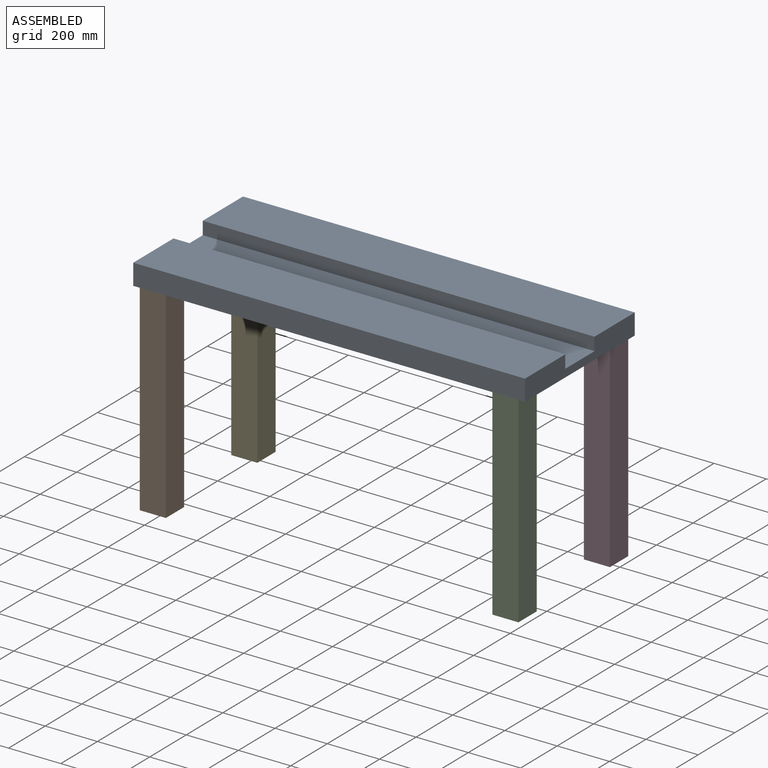
[diagram: assembled view]
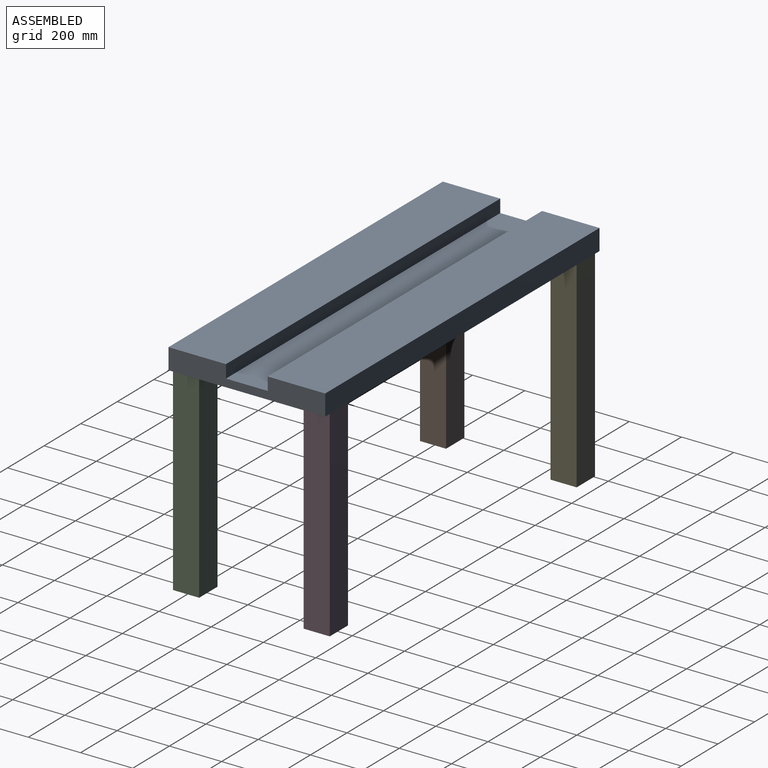
[diagram: assembled view, second angle]
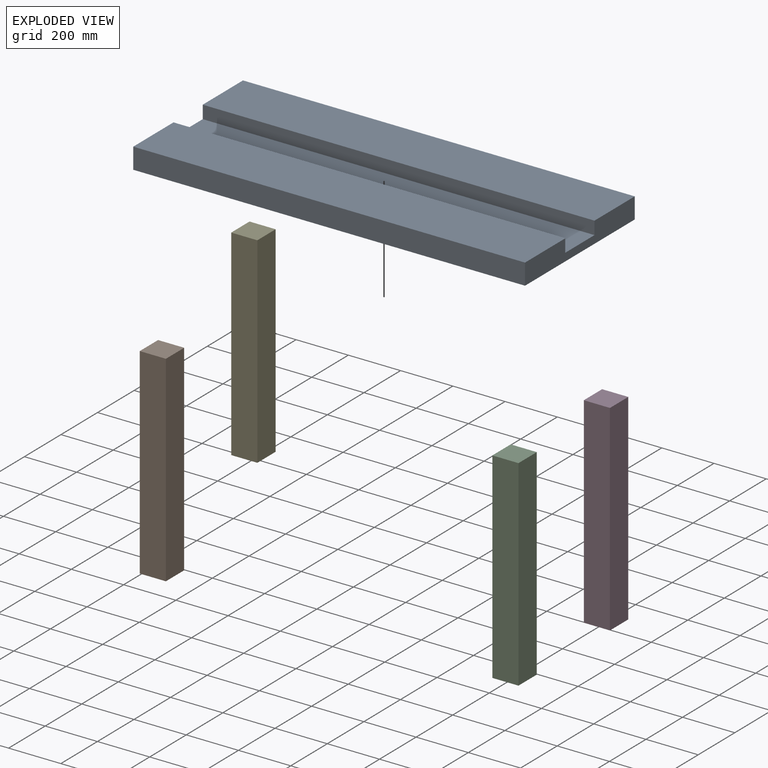
[diagram: exploded view]
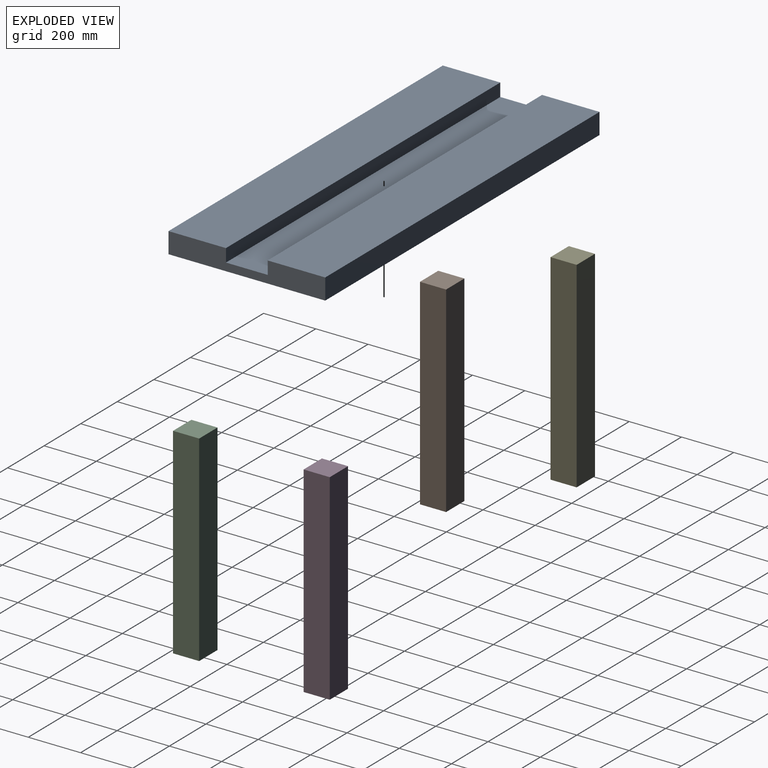
[diagram: exploded view, second angle]
ASSEMBLY  parts=5 mates=4
PART A: 10 faces, bbox 1500x600x80 mm
  f0: plane 1500x220mm, normal (0,0,1), area 330000mm2, adj f1,f2,f3,f8
  f1: plane 600x80mm, normal (-1,0,0), area 40000mm2, adj f0,f3,f4,f5,f6,f7,f8,f9
  f2: plane 600x80mm, normal (1,0,0), area 40000mm2, adj f0,f3,f4,f5,f6,f7,f8,f9
  f3: plane 1500x80mm, normal (0,1,0), area 120000mm2, adj f0,f1,f2,f6
  f4: plane 1500x80mm, normal (0,-1,0), area 120000mm2, adj f1,f2,f5,f6
  f5: plane 1500x220mm, normal (0,0,1), area 330000mm2, adj f1,f2,f4,f7
  f6: plane 1500x600mm, normal (0,0,-1), area 900000mm2, adj f1,f2,f3,f4
  f7: plane 1500x50mm, normal (0,1,0), area 75000mm2, adj f1,f2,f5,f9
  f8: plane 1500x50mm, normal (0,-1,0), area 75000mm2, adj f0,f1,f2,f9
  f9: plane 1500x160mm, normal (0,0,1), area 240000mm2, adj f1,f2,f7,f8
PART B: 6 faces, bbox 100x100x770 mm
  f0: plane 770x100mm, normal (1,0,0), area 77000mm2, adj f1,f3,f4,f5
  f1: plane 770x100mm, normal (0,1,0), area 77000mm2, adj f0,f2,f4,f5
  f2: plane 770x100mm, normal (-1,0,0), area 77000mm2, adj f1,f3,f4,f5
  f3: plane 770x100mm, normal (0,-1,0), area 77000mm2, adj f0,f2,f4,f5
  f4: plane 100x100mm, normal (0,0,1), area 10000mm2, adj f0,f1,f2,f3
  f5: plane 100x100mm, normal (0,0,-1), area 10000mm2, adj f0,f1,f2,f3
PART C: same geometry as B
PART D: same geometry as B
PART E: same geometry as B
PLACE A t=(-47.06,148.67,-161.23)mm fixed
PLACE B rot(axis=(0,0,1),90deg) t=(-722.06,-101.33,-931.23)mm
PLACE C t=(627.94,-101.33,-931.23)mm
PLACE D t=(627.94,398.67,-931.23)mm
PLACE E rot(axis=(0,0,-1),90deg) t=(-722.06,398.67,-931.23)mm
MATE fastened A.f6 <-> C.f4  axis (0,0,-1) through (702.94,-151.33,-161.23)mm
MATE fastened D.f4 <-> A.f6  axis (0,0,1) through (677.94,448.67,-161.23)mm
MATE fastened A.f6 <-> B.f4  axis (0,0,1) through (-797.06,-151.33,-161.23)mm
MATE fastened E.f4 <-> A.f6  axis (0,0,-1) through (-772.06,448.67,-161.23)mm
